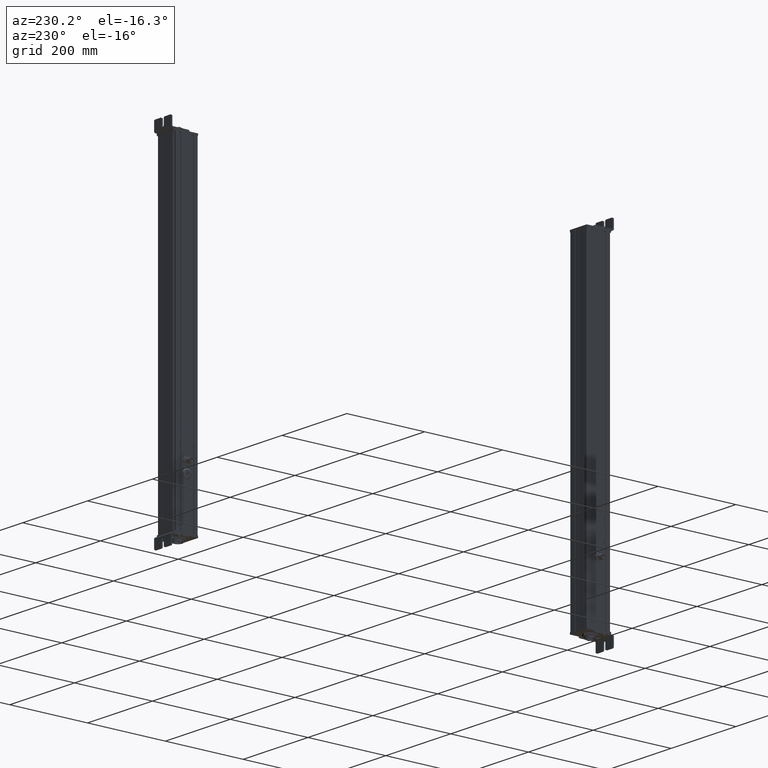
[diagram: clean part render]
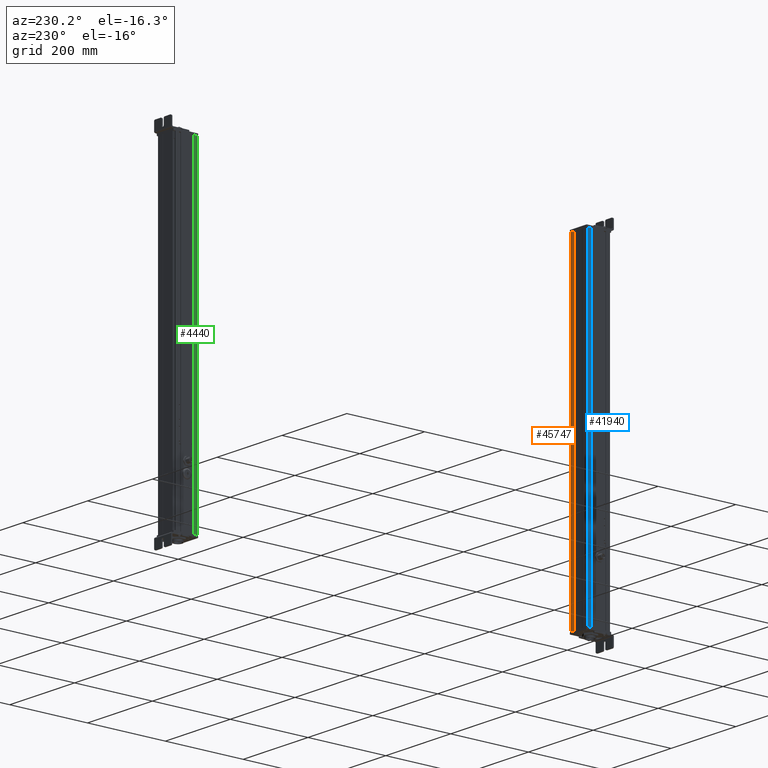
[diagram: same view with three faces highlighted in distinct colors, each labeled with its STEP entity id]
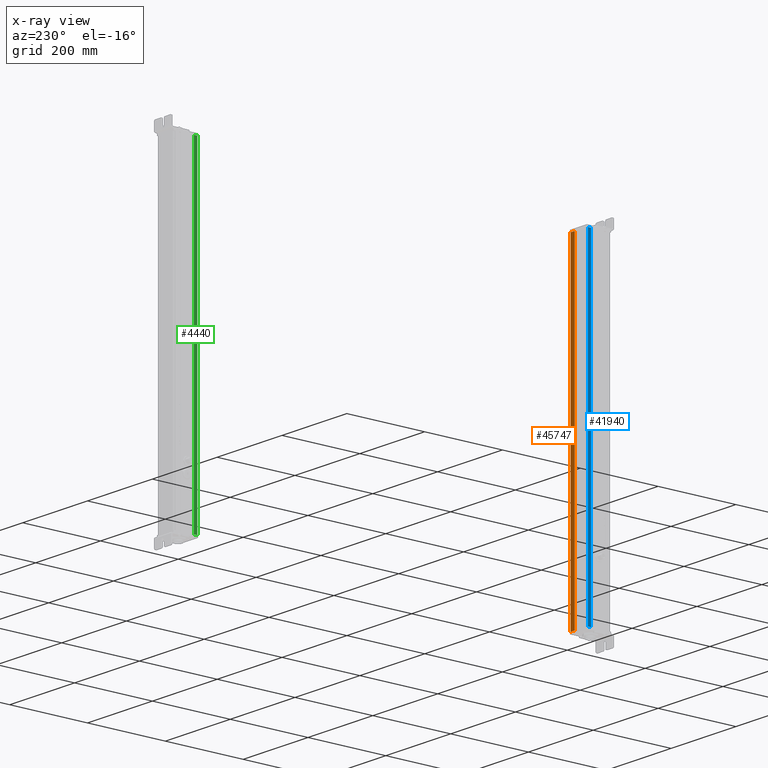
[diagram: x-ray of the same camera — body ghosted, the three highlighted faces saturated]
A machine part, auxiliary view with three faces highlighted in distinct colors.
The next image is the same camera in x-ray (body ghosted, the three faces saturated) — at least one of them is partly hidden behind the body in this view.
Their STEP definitions:

[orange] entity #45747 — the highlighted planar face has unit normal (0, 1, 0).
#41848=CARTESIAN_POINT('Axis2P3D Location',(664.195883662,182.060203323,0.)) ;
#45700=CARTESIAN_POINT('Vertex',(664.195883661,182.060203323,0.)) ;
#45703=CARTESIAN_POINT('Line Origine',(664.195883661,182.060203323,411.)) ;
#45707=CARTESIAN_POINT('Vertex',(664.195883661,182.060203323,822.)) ;
#45722=CARTESIAN_POINT('Line Origine',(657.845883661,182.060203323,0.)) ;
#45726=CARTESIAN_POINT('Vertex',(651.495883661,182.060203323,0.)) ;
#45729=CARTESIAN_POINT('Line Origine',(651.495883661,182.060203323,411.)) ;
#45733=CARTESIAN_POINT('Vertex',(651.495883661,182.060203323,822.)) ;
#45736=CARTESIAN_POINT('Line Origine',(657.845883661,182.060203323,822.)) ;
#41849=DIRECTION('Axis2P3D Direction',(0.,1.,-0.)) ;
#41850=DIRECTION('Axis2P3D XDirection',(-1.,0.,0.)) ;
#45704=DIRECTION('Vector Direction',(0.,0.,1.)) ;
#45723=DIRECTION('Vector Direction',(-1.,0.,0.)) ;
#45730=DIRECTION('Vector Direction',(0.,0.,1.)) ;
#45737=DIRECTION('Vector Direction',(-1.,0.,0.)) ;
#41851=AXIS2_PLACEMENT_3D('Plane Axis2P3D',#41848,#41849,#41850) ;
#45742=ORIENTED_EDGE('',*,*,#45709,.F.) ;
#45743=ORIENTED_EDGE('',*,*,#45728,.T.) ;
#45744=ORIENTED_EDGE('',*,*,#45735,.T.) ;
#45745=ORIENTED_EDGE('',*,*,#45740,.F.) ;
#45705=VECTOR('Line Direction',#45704,1.) ;
#45724=VECTOR('Line Direction',#45723,1.) ;
#45731=VECTOR('Line Direction',#45730,1.) ;
#45738=VECTOR('Line Direction',#45737,1.) ;
#45747=ADVANCED_FACE('Body.2',(#45746),#41852,.T.) ;
#45709=EDGE_CURVE('',#45701,#45708,#45706,.T.) ;
#45728=EDGE_CURVE('',#45701,#45727,#45725,.T.) ;
#45735=EDGE_CURVE('',#45727,#45734,#45732,.T.) ;
#45740=EDGE_CURVE('',#45708,#45734,#45739,.T.) ;
#45741=EDGE_LOOP('',(#45742,#45743,#45744,#45745)) ;
#45746=FACE_OUTER_BOUND('',#45741,.T.) ;
#45706=LINE('Line',#45703,#45705) ;
#45725=LINE('Line',#45722,#45724) ;
#45732=LINE('Line',#45729,#45731) ;
#45739=LINE('Line',#45736,#45738) ;
#41852=PLANE('Plane',#41851) ;
#45701=VERTEX_POINT('',#45700) ;
#45708=VERTEX_POINT('',#45707) ;
#45727=VERTEX_POINT('',#45726) ;
#45734=VERTEX_POINT('',#45733) ;

[blue] entity #41940 — the highlighted planar face has unit normal (-1, 0, 0).
#41888=CARTESIAN_POINT('Vertex',(613.195548938,180.060203323,0.)) ;
#41891=CARTESIAN_POINT('Line Origine',(613.195548938,180.060203323,411.)) ;
#41895=CARTESIAN_POINT('Vertex',(613.195548938,180.060203323,822.)) ;
#41910=CARTESIAN_POINT('Axis2P3D Location',(613.195548937,133.067790275,0.)) ;
#41915=CARTESIAN_POINT('Line Origine',(613.195548937,175.885298663,0.)) ;
#41919=CARTESIAN_POINT('Vertex',(613.195548937,171.710394004,0.)) ;
#41922=CARTESIAN_POINT('Line Origine',(613.195548937,171.710394004,411.)) ;
#41926=CARTESIAN_POINT('Vertex',(613.195548937,171.710394004,822.)) ;
#41929=CARTESIAN_POINT('Line Origine',(613.195548937,175.885298663,822.)) ;
#41892=DIRECTION('Vector Direction',(0.,0.,1.)) ;
#41911=DIRECTION('Axis2P3D Direction',(-1.,0.,0.)) ;
#41912=DIRECTION('Axis2P3D XDirection',(0.,-1.,0.)) ;
#41916=DIRECTION('Vector Direction',(0.,-1.,0.)) ;
#41923=DIRECTION('Vector Direction',(0.,0.,1.)) ;
#41930=DIRECTION('Vector Direction',(0.,-1.,0.)) ;
#41913=AXIS2_PLACEMENT_3D('Plane Axis2P3D',#41910,#41911,#41912) ;
#41935=ORIENTED_EDGE('',*,*,#41897,.F.) ;
#41936=ORIENTED_EDGE('',*,*,#41921,.T.) ;
#41937=ORIENTED_EDGE('',*,*,#41928,.T.) ;
#41938=ORIENTED_EDGE('',*,*,#41933,.F.) ;
#41893=VECTOR('Line Direction',#41892,1.) ;
#41917=VECTOR('Line Direction',#41916,1.) ;
#41924=VECTOR('Line Direction',#41923,1.) ;
#41931=VECTOR('Line Direction',#41930,1.) ;
#41940=ADVANCED_FACE('Body.2',(#41939),#41914,.T.) ;
#41897=EDGE_CURVE('',#41889,#41896,#41894,.T.) ;
#41921=EDGE_CURVE('',#41889,#41920,#41918,.T.) ;
#41928=EDGE_CURVE('',#41920,#41927,#41925,.T.) ;
#41933=EDGE_CURVE('',#41896,#41927,#41932,.T.) ;
#41934=EDGE_LOOP('',(#41935,#41936,#41937,#41938)) ;
#41939=FACE_OUTER_BOUND('',#41934,.T.) ;
#41894=LINE('Line',#41891,#41893) ;
#41918=LINE('Line',#41915,#41917) ;
#41925=LINE('Line',#41922,#41924) ;
#41932=LINE('Line',#41929,#41931) ;
#41914=PLANE('Plane',#41913) ;
#41889=VERTEX_POINT('',#41888) ;
#41896=VERTEX_POINT('',#41895) ;
#41920=VERTEX_POINT('',#41919) ;
#41927=VERTEX_POINT('',#41926) ;

[green] entity #4440 — the highlighted planar face has unit normal (-1, 0, 0).
#2992=CARTESIAN_POINT('Axis2P3D Location',(666.195883662,171.710394004,0.)) ;
#4393=CARTESIAN_POINT('Vertex',(666.195883661,171.710394004,0.)) ;
#4396=CARTESIAN_POINT('Line Origine',(666.195883661,171.710394004,411.)) ;
#4400=CARTESIAN_POINT('Vertex',(666.195883661,171.710394004,822.)) ;
#4415=CARTESIAN_POINT('Line Origine',(666.195883662,175.885298663,0.)) ;
#4419=CARTESIAN_POINT('Vertex',(666.195883662,180.060203323,0.)) ;
#4422=CARTESIAN_POINT('Line Origine',(666.195883662,180.060203323,411.)) ;
#4426=CARTESIAN_POINT('Vertex',(666.195883662,180.060203323,822.)) ;
#4429=CARTESIAN_POINT('Line Origine',(666.195883662,175.885298663,822.)) ;
#2993=DIRECTION('Axis2P3D Direction',(1.,0.,0.)) ;
#2994=DIRECTION('Axis2P3D XDirection',(0.,1.,0.)) ;
#4397=DIRECTION('Vector Direction',(0.,0.,1.)) ;
#4416=DIRECTION('Vector Direction',(0.,1.,0.)) ;
#4423=DIRECTION('Vector Direction',(0.,0.,1.)) ;
#4430=DIRECTION('Vector Direction',(0.,1.,0.)) ;
#2995=AXIS2_PLACEMENT_3D('Plane Axis2P3D',#2992,#2993,#2994) ;
#4435=ORIENTED_EDGE('',*,*,#4402,.F.) ;
#4436=ORIENTED_EDGE('',*,*,#4421,.T.) ;
#4437=ORIENTED_EDGE('',*,*,#4428,.T.) ;
#4438=ORIENTED_EDGE('',*,*,#4433,.F.) ;
#4398=VECTOR('Line Direction',#4397,1.) ;
#4417=VECTOR('Line Direction',#4416,1.) ;
#4424=VECTOR('Line Direction',#4423,1.) ;
#4431=VECTOR('Line Direction',#4430,1.) ;
#4440=ADVANCED_FACE('Body.2',(#4439),#2996,.T.) ;
#4402=EDGE_CURVE('',#4394,#4401,#4399,.T.) ;
#4421=EDGE_CURVE('',#4394,#4420,#4418,.T.) ;
#4428=EDGE_CURVE('',#4420,#4427,#4425,.T.) ;
#4433=EDGE_CURVE('',#4401,#4427,#4432,.T.) ;
#4434=EDGE_LOOP('',(#4435,#4436,#4437,#4438)) ;
#4439=FACE_OUTER_BOUND('',#4434,.T.) ;
#4399=LINE('Line',#4396,#4398) ;
#4418=LINE('Line',#4415,#4417) ;
#4425=LINE('Line',#4422,#4424) ;
#4432=LINE('Line',#4429,#4431) ;
#2996=PLANE('Plane',#2995) ;
#4394=VERTEX_POINT('',#4393) ;
#4401=VERTEX_POINT('',#4400) ;
#4420=VERTEX_POINT('',#4419) ;
#4427=VERTEX_POINT('',#4426) ;